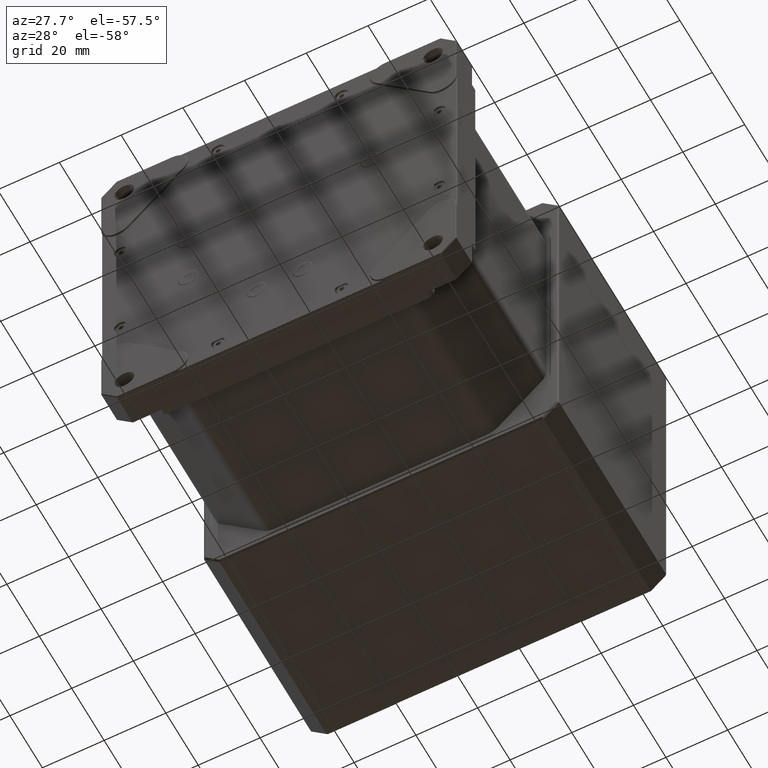
[diagram: clean part render]
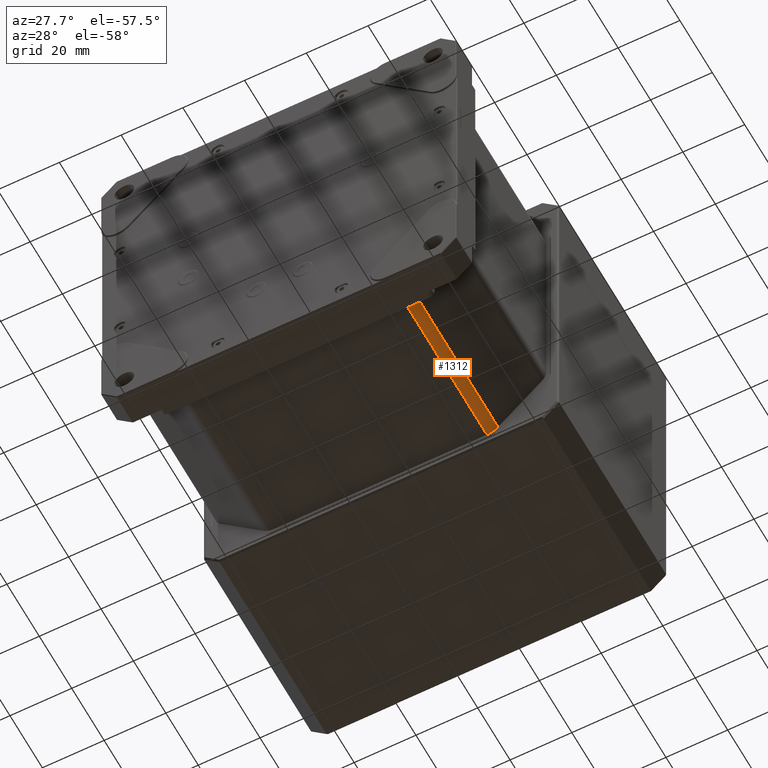
[diagram: same view with one face highlighted and labeled with its STEP entity id]
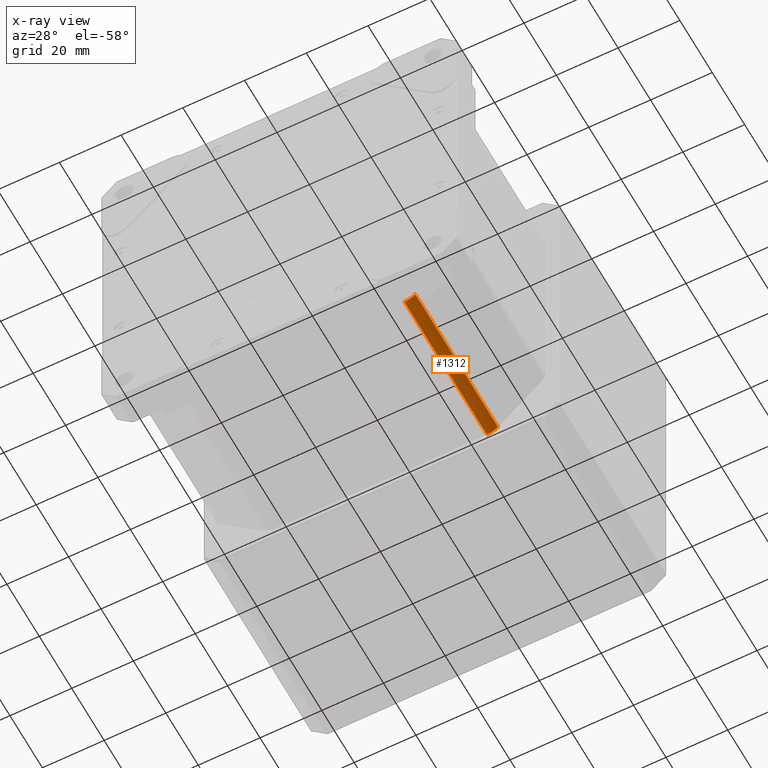
[diagram: x-ray of the same camera — body ghosted, the highlighted face saturated]
A machine part, auxiliary view. The second image highlights one B-rep face of the part: STEP entity #1312.
The next image is the same camera in x-ray: the body ghosted, the highlighted face saturated — about 0% of this face is hidden behind the body in this view.
In plain terms, the highlighted cylindrical surface (edge-blend (fillet) strip) has radius 5 mm, axis along (0, -1, 0).
Its self-contained STEP definition (entity closure, byte-faithful):
#896 = VECTOR ( 'NONE', #10171, 1000.000000000000000 ) ;
#1205 = DIRECTION ( 'NONE',  ( -9.338243905111609698E-32, 1.000000000000000000, -2.262980913479745007E-16 ) ) ;
#1312 = ADVANCED_FACE ( 'NONE', ( #47412 ), #6169, .T. ) ;
#1969 = CARTESIAN_POINT ( 'NONE',  ( 3.457427548118839677, 12.00000000000000000, -102.0000000000000000 ) ) ;
#2077 = DIRECTION ( 'NONE',  ( 0.000000000000000000, -1.000000000000000000, 2.262980913479740076E-16 ) ) ;
#2941 = EDGE_CURVE ( 'NONE', #13503, #9831, #47740, .T. ) ;
#5399 = AXIS2_PLACEMENT_3D ( 'NONE', #16268, #6198, #37383 ) ;
#6169 = CYLINDRICAL_SURFACE ( 'NONE', #20176, 5.000000000000000888 ) ;
#6198 = DIRECTION ( 'NONE',  ( 0.000000000000000000, -1.000000000000000000, 2.262980913479740076E-16 ) ) ;
#9108 = CARTESIAN_POINT ( 'NONE',  ( 3.457427548118839677, 12.00000000000000000, -107.0000000000000000 ) ) ;
#9831 = VERTEX_POINT ( 'NONE', #22507 ) ;
#10171 = DIRECTION ( 'NONE',  ( 7.142000274496228684E-17, -1.000000000000000000, -7.142000274496238545E-17 ) ) ;
#10660 = DIRECTION ( 'NONE',  ( -3.469446951953615175E-16, 1.000000000000000000, -2.262980913479740076E-16 ) ) ;
#11382 = ORIENTED_EDGE ( 'NONE', *, *, #2941, .T. ) ;
#13503 = VERTEX_POINT ( 'NONE', #9108 ) ;
#14505 = CARTESIAN_POINT ( 'NONE',  ( 6.992961454051539683, 117.0000000000000000, -105.5355339059328088 ) ) ;
#16268 = CARTESIAN_POINT ( 'NONE',  ( 3.457427548118825023, 62.99999999999880629, -102.0000000000000000 ) ) ;
#18328 = DIRECTION ( 'NONE',  ( 1.000000000000000000, 3.469446951953613696E-16, 0.000000000000000000 ) ) ;
#18743 = VERTEX_POINT ( 'NONE', #23297 ) ;
#19584 = ORIENTED_EDGE ( 'NONE', *, *, #50229, .T. ) ;
#20176 = AXIS2_PLACEMENT_3D ( 'NONE', #33271, #2077, #47669 ) ;
#22507 = CARTESIAN_POINT ( 'NONE',  ( 3.457427548118829908, 62.99999999999880629, -107.0000000000000000 ) ) ;
#23297 = CARTESIAN_POINT ( 'NONE',  ( 6.992961454051419778, 12.00000000000000000, -105.5355339059328088 ) ) ;
#26695 = AXIS2_PLACEMENT_3D ( 'NONE', #1969, #10660, #18328 ) ;
#28258 = EDGE_CURVE ( 'NONE', #18743, #13503, #35665, .T. ) ;
#28293 = EDGE_LOOP ( 'NONE', ( #34116, #11382, #49360, #19584 ) ) ;
#30333 = LINE ( 'NONE', #14505, #896 ) ;
#33271 = CARTESIAN_POINT ( 'NONE',  ( 3.457427548118805039, 117.0000000000000000, -102.0000000000000000 ) ) ;
#34116 = ORIENTED_EDGE ( 'NONE', *, *, #28258, .T. ) ;
#35665 = CIRCLE ( 'NONE', #26695, 5.000000000000000888 ) ;
#36236 = CARTESIAN_POINT ( 'NONE',  ( 3.457427548118839677, 117.0000000000000000, -107.0000000000000000 ) ) ;
#37383 = DIRECTION ( 'NONE',  ( 1.000000000000000000, 0.000000000000000000, 0.000000000000000000 ) ) ;
#37759 = VERTEX_POINT ( 'NONE', #47708 ) ;
#40154 = EDGE_CURVE ( 'NONE', #9831, #37759, #42151, .T. ) ;
#41450 = VECTOR ( 'NONE', #1205, 1000.000000000000000 ) ;
#42151 = CIRCLE ( 'NONE', #5399, 4.999999999999999112 ) ;
#47412 = FACE_OUTER_BOUND ( 'NONE', #28293, .T. ) ;
#47669 = DIRECTION ( 'NONE',  ( 1.000000000000000000, 0.000000000000000000, 0.000000000000000000 ) ) ;
#47708 = CARTESIAN_POINT ( 'NONE',  ( 6.992961454051549453, 62.99999999999880629, -105.5355339059328088 ) ) ;
#47740 = LINE ( 'NONE', #36236, #41450 ) ;
#49360 = ORIENTED_EDGE ( 'NONE', *, *, #40154, .T. ) ;
#50229 = EDGE_CURVE ( 'NONE', #37759, #18743, #30333, .T. ) ;